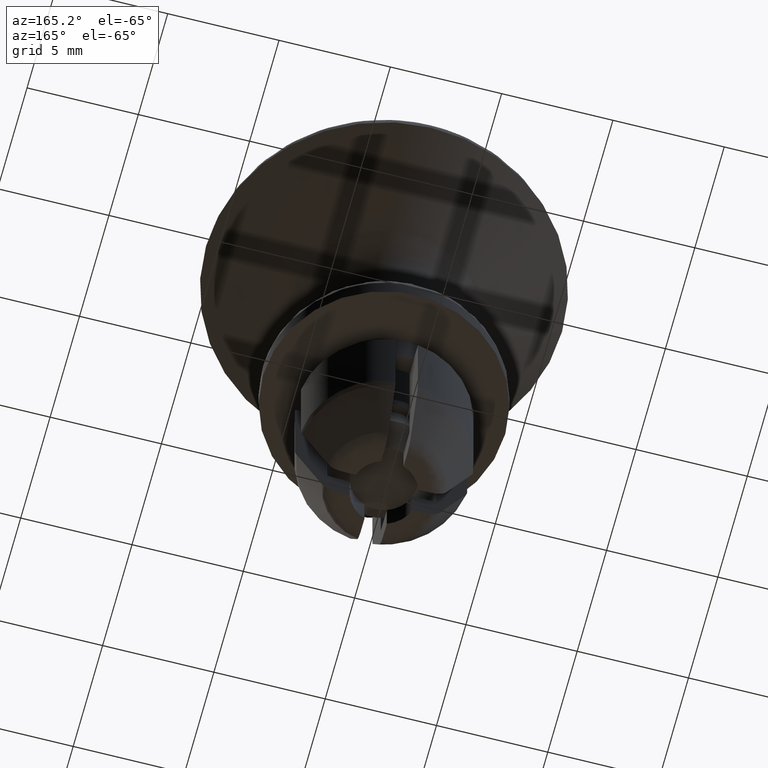
[diagram: clean part render]
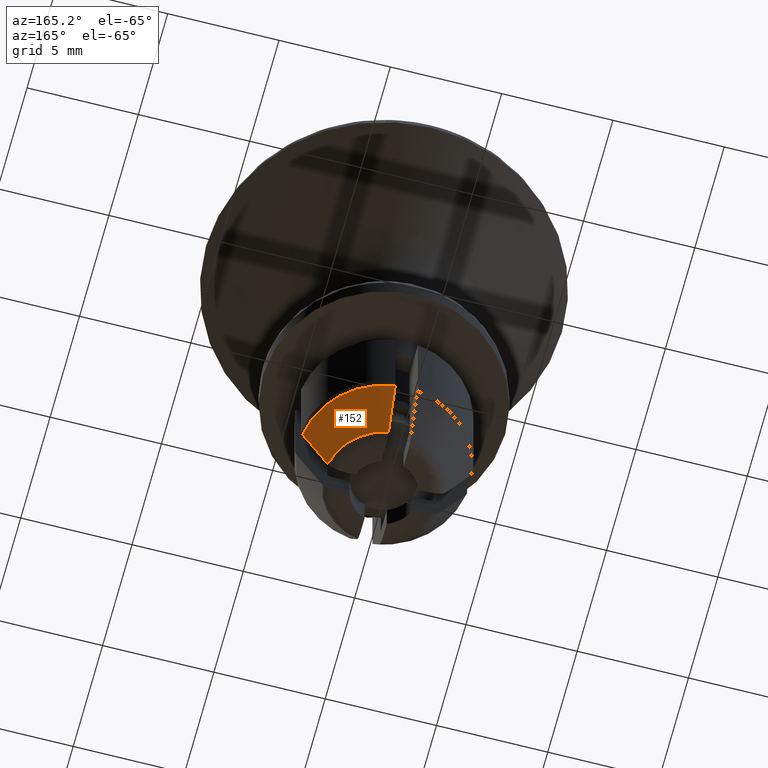
[diagram: same view with one face highlighted and labeled with its STEP entity id]
A machine part, auxiliary view. The second image highlights one B-rep face of the part: STEP entity #152.
In plain terms, the highlighted face is a freeform B-spline surface patch.
Its self-contained STEP definition (entity closure, byte-faithful):
#152=ADVANCED_FACE('',(#596),#595,.T.);
#595=( BOUNDED_SURFACE() B_SPLINE_SURFACE( 2,1,((#1270,#1271),(#1272,#1273),(#1274,#1275)), .UNSPECIFIED.,.F.,.F.,.F.) B_SPLINE_SURFACE_WITH_KNOTS((3,3),(2,2),(0.00000000000E+00,1.00000000000E+00),(0.00000000000E+00,1.00000000000E+00), .UNSPECIFIED. ) GEOMETRIC_REPRESENTATION_ITEM() RATIONAL_B_SPLINE_SURFACE(((1.00000000000E+00,1.00000000000E+00),(7.93400167701E-01,7.93400167701E-01),(1.00000000000E+00,1.00000000000E+00))) REPRESENTATION_ITEM('') SURFACE() );
#596=FACE_OUTER_BOUND('',#1276,.T.);
#1270=CARTESIAN_POINT('',(2.67863283782E+00,3.52858350227E-01,-1.05678842499E+01));
#1271=CARTESIAN_POINT('',(3.79175565946E+00,4.99490869959E-01,-8.16190055103E+00));
#1272=CARTESIAN_POINT('',(2.40791822648E+00,2.40791825500E+00,-1.05678842499E+01));
#1273=CARTESIAN_POINT('',(3.40854387875E+00,3.40854391912E+00,-8.16190055103E+00));
#1274=CARTESIAN_POINT('',(3.52858318499E-01,2.67863284200E+00,-1.05678842499E+01));
#1275=CARTESIAN_POINT('',(4.99490825046E-01,3.79175566538E+00,-8.16190055103E+00));
#1276=EDGE_LOOP('',(#1850,#1851,#1852,#1853));
#1850=ORIENTED_EDGE('',*,*,#2174,.F.);
#1851=ORIENTED_EDGE('',*,*,#2080,.T.);
#1852=ORIENTED_EDGE('',*,*,#2183,.T.);
#1853=ORIENTED_EDGE('',*,*,#2090,.T.);
#2080=EDGE_CURVE('',#2446,#2439,#2447,.T.);
#2090=EDGE_CURVE('',#2516,#2509,#2517,.T.);
#2174=EDGE_CURVE('',#2446,#2509,#3071,.T.);
#2183=EDGE_CURVE('',#2439,#2516,#3128,.T.);
#2439=VERTEX_POINT('',#3689);
#2446=VERTEX_POINT('',#3696);
#2447=(BOUNDED_CURVE() B_SPLINE_CURVE(3,(#3697,#3698,#3699,#3700),.UNSPECIFIED.,.F.,.F.) B_SPLINE_CURVE_WITH_KNOTS((4,4),(3.64126434805E-03,6.30103888672E-03),.UNSPECIFIED.) CURVE() GEOMETRIC_REPRESENTATION_ITEM() RATIONAL_B_SPLINE_CURVE((1.00000000000E+00,1.00000000000E+00,1.00000000000E+00,1.00000000000E+00)) REPRESENTATION_ITEM('') );
#2509=VERTEX_POINT('',#3736);
#2516=VERTEX_POINT('',#3743);
#2517=(BOUNDED_CURVE() B_SPLINE_CURVE(3,(#3744,#3745,#3746,#3747),.UNSPECIFIED.,.F.,.F.) B_SPLINE_CURVE_WITH_KNOTS((4,4),(1.75155676958E-03,4.41142163983E-03),.UNSPECIFIED.) CURVE() GEOMETRIC_REPRESENTATION_ITEM() RATIONAL_B_SPLINE_CURVE((1.00000000000E+00,1.00000000000E+00,1.00000000000E+00,1.00000000000E+00)) REPRESENTATION_ITEM('') );
#3071=CIRCLE('',#4115,2.70200000000E+00);
#3128=CIRCLE('',#4158,3.82428734418E+00);
#3689=CARTESIAN_POINT('',(5.00000000000E-01,3.79146062764E+00,-8.16238480092E+00));
#3696=CARTESIAN_POINT('',(5.00000000000E-01,2.65533500711E+00,-1.05674000000E+01));
#3697=CARTESIAN_POINT('',(5.00000000000E-01,2.65533500711E+00,-1.05674000000E+01));
#3698=CARTESIAN_POINT('',(5.00000000000E-01,3.03564503778E+00,-9.76648668025E+00));
#3699=CARTESIAN_POINT('',(5.00000000000E-01,3.41387641556E+00,-8.96458658010E+00));
#3700=CARTESIAN_POINT('',(5.00000000000E-01,3.79146062763E+00,-8.16238480092E+00));
#3736=CARTESIAN_POINT('',(2.65533500711E+00,5.00000000000E-01,-1.05674000000E+01));
#3743=CARTESIAN_POINT('',(3.79146062763E+00,5.00000000000E-01,-8.16238480092E+00));
#3744=CARTESIAN_POINT('',(3.79146062763E+00,5.00000000000E-01,-8.16238480092E+00));
#3745=CARTESIAN_POINT('',(3.41387629580E+00,5.00000000000E-01,-8.96458683454E+00));
#3746=CARTESIAN_POINT('',(3.03564344098E+00,5.00000000000E-01,-9.76649004301E+00));
#3747=CARTESIAN_POINT('',(2.65533500711E+00,5.00000000000E-01,-1.05674000000E+01));
#4112=CARTESIAN_POINT('',(0.00000000000E+00,0.00000000000E+00,-1.05674000000E+01));
#4113=DIRECTION('',(0.00000000000E+00,0.00000000000E+00,-1.00000000000E+00));
#4114=DIRECTION('',(1.00000000000E+00,-0.00000000000E+00,-0.00000000000E+00));
#4115=AXIS2_PLACEMENT_3D('',#4112,#4113,#4114);
#4155=CARTESIAN_POINT('',(0.00000000000E+00,0.00000000000E+00,-8.16238480092E+00));
#4156=DIRECTION('',(0.00000000000E+00,0.00000000000E+00,-1.00000000000E+00));
#4157=DIRECTION('',(1.00000000000E+00,-0.00000000000E+00,-0.00000000000E+00));
#4158=AXIS2_PLACEMENT_3D('',#4155,#4156,#4157);